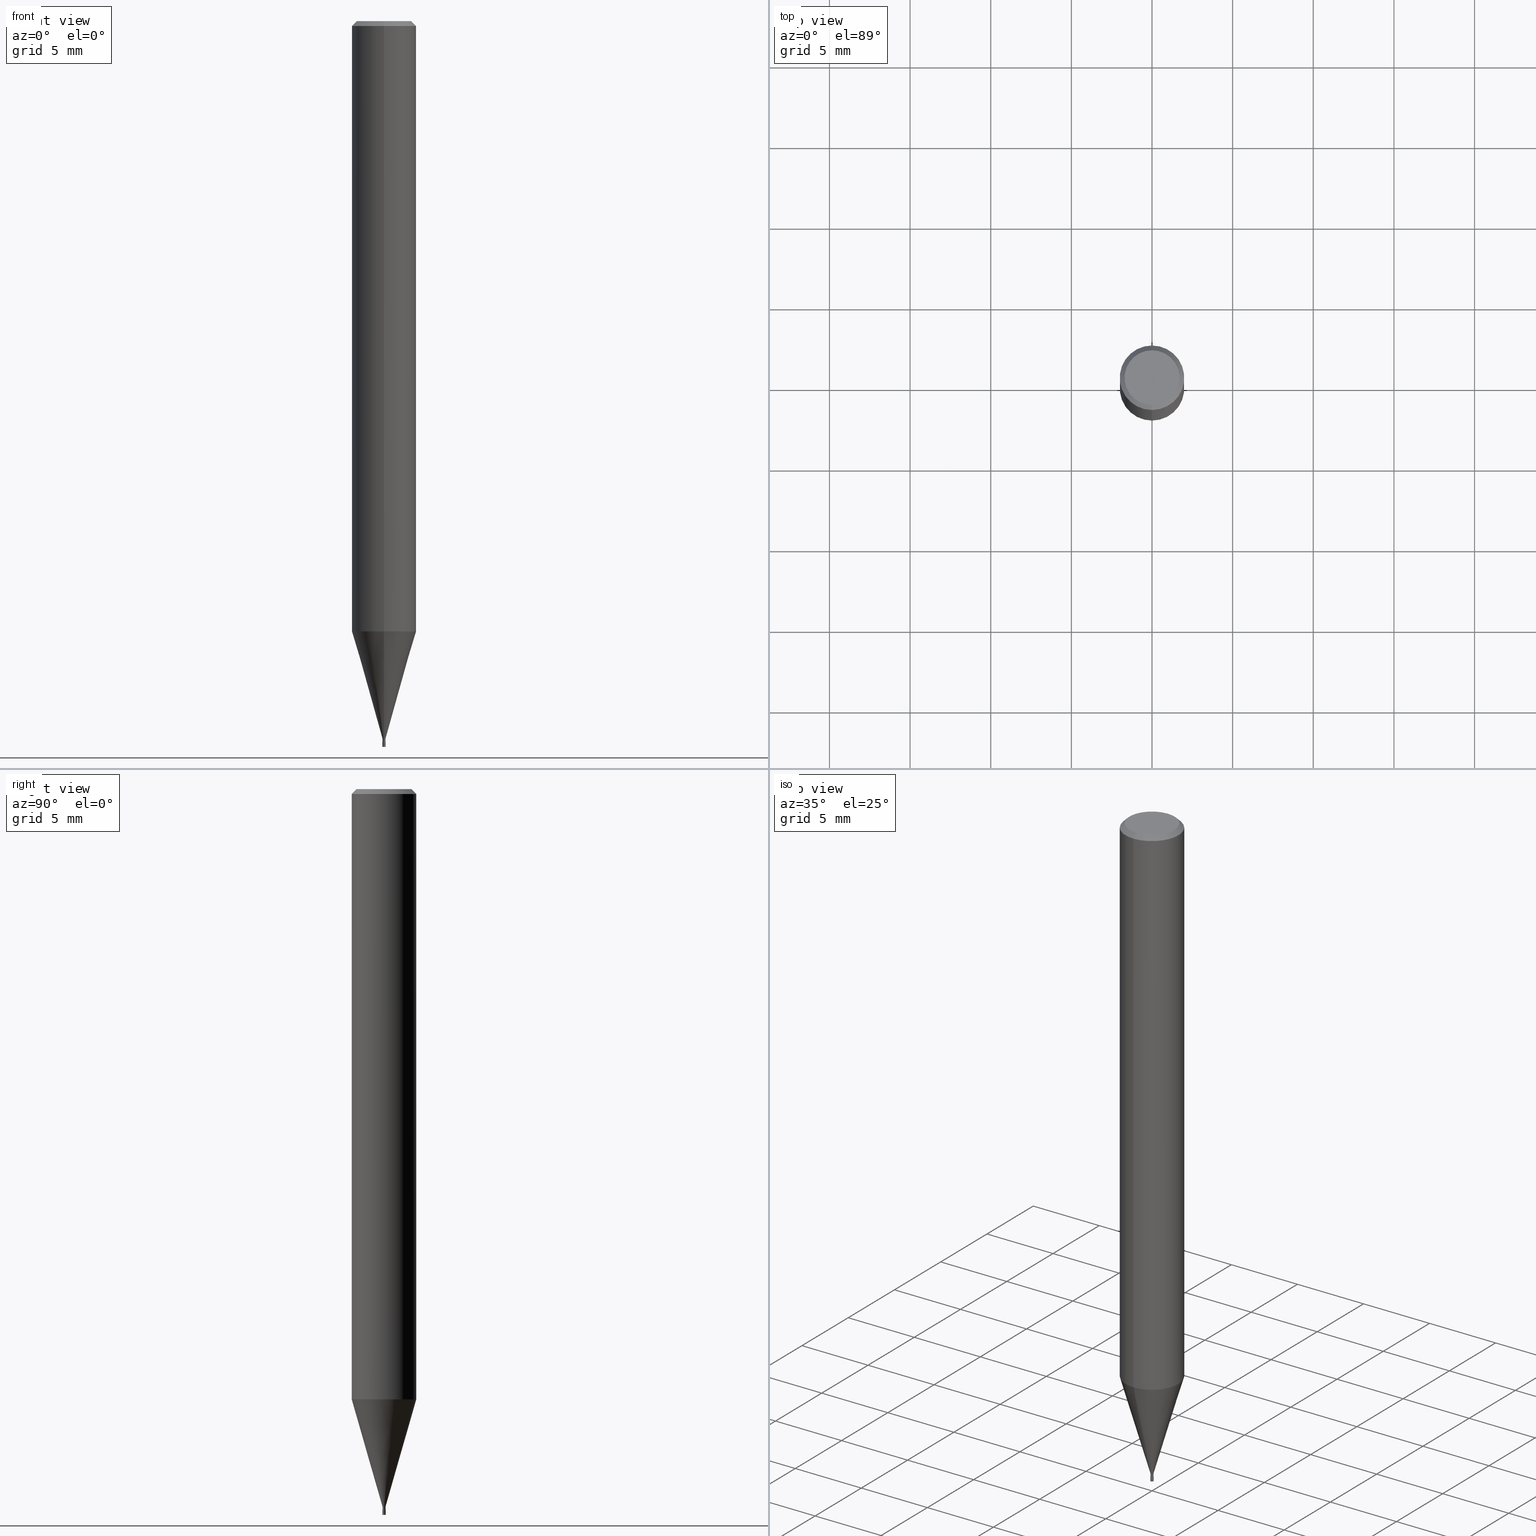
[diagram: canonical four-view strip — front | top / right | iso, engineering-drawing reading convention]
A machine part, canonical four-view strip (front | top / right | iso — engineering-drawing reading convention). The complete STEP part file that produces these views, byte-faithful:
ISO-10303-21;
HEADER;
FILE_DESCRIPTION(('no description'),'unknown implementation level');
FILE_NAME('HLS2002-005-Huellk.stp','  ',('CIMSOURCE GmbH'),('CADClick - KiM GmbH - www.kimweb.de'),'unknown preprocess','ACIS','unknown authorization');
FILE_SCHEMA(('automotive_design'));
ENDSEC;
DATA;
#1=MECHANICAL_DESIGN_GEOMETRIC_PRESENTATION_REPRESENTATION(' ',(#14,#15,#16,#17,#18,#19,#20,#21,#22,#23,#24,#25,#26,#27,#28,#29,#30,#31,#32,#33,#34,#35,#36,#37,#38,#39,#40,#41,#42,#43,#44,#45,#46,#47,#48,#49,#50,#51,#52,#53,#54,#55,#56,#57,#58,#59,#60,#61,#62,#63,#64,#65,#66,#67,#68,#69,#70,#71,#72),#10);
#2=PRODUCT_DEFINITION_CONTEXT('',#73,'design');
#3=APPLICATION_PROTOCOL_DEFINITION('INTERNATIONAL STANDARD','automotive_design',1994,#73);
#4=PRODUCT_CATEGORY_RELATIONSHIP('NONE','NONE',#74,#75);
#5=SHAPE_DEFINITION_REPRESENTATION(#76,#77);
#6=PRODUCT_DEFINITION_CONTEXT('',#78,'design');
#7=APPLICATION_PROTOCOL_DEFINITION('INTERNATIONAL STANDARD','automotive_design',1994,#78);
#8=PRODUCT_CATEGORY_RELATIONSHIP('NONE','NONE',#79,#80);
#9=SHAPE_DEFINITION_REPRESENTATION(#81,#82);
#10= (GEOMETRIC_REPRESENTATION_CONTEXT(3)GLOBAL_UNCERTAINTY_ASSIGNED_CONTEXT((#85))GLOBAL_UNIT_ASSIGNED_CONTEXT((#87,#88,#89))REPRESENTATION_CONTEXT('NONE','WORKSPACE'));
#14=STYLED_ITEM('',(#91),#92);
#15=STYLED_ITEM('',(#93),#94);
#16=STYLED_ITEM('',(#95),#96);
#17=STYLED_ITEM('',(#97),#98);
#18=STYLED_ITEM('',(#99),#100);
#19=STYLED_ITEM('',(#101),#102);
#20=STYLED_ITEM('',(#103),#104);
#21=STYLED_ITEM('',(#105),#106);
#22=STYLED_ITEM('',(#107),#108);
#23=STYLED_ITEM('',(#109),#110);
#24=STYLED_ITEM('',(#111),#112);
#25=STYLED_ITEM('',(#113),#114);
#26=STYLED_ITEM('',(#115),#116);
#27=STYLED_ITEM('',(#117),#118);
#28=STYLED_ITEM('',(#119),#120);
#29=STYLED_ITEM('',(#121),#122);
#30=STYLED_ITEM('',(#123),#124);
#31=STYLED_ITEM('',(#125),#126);
#32=STYLED_ITEM('',(#127),#128);
#33=STYLED_ITEM('',(#129),#130);
#34=STYLED_ITEM('',(#131),#132);
#35=STYLED_ITEM('',(#133),#134);
#36=STYLED_ITEM('',(#135),#136);
#37=STYLED_ITEM('',(#137),#138);
#38=STYLED_ITEM('',(#139),#140);
#39=STYLED_ITEM('',(#141),#142);
#40=STYLED_ITEM('',(#143),#144);
#41=STYLED_ITEM('',(#145),#146);
#42=STYLED_ITEM('',(#147),#148);
#43=STYLED_ITEM('',(#149),#150);
#44=STYLED_ITEM('',(#151),#152);
#45=STYLED_ITEM('',(#153),#154);
#46=STYLED_ITEM('',(#155),#156);
#47=STYLED_ITEM('',(#157),#158);
#48=STYLED_ITEM('',(#159),#160);
#49=STYLED_ITEM('',(#161),#162);
#50=STYLED_ITEM('',(#163),#164);
#51=STYLED_ITEM('',(#165),#166);
#52=STYLED_ITEM('',(#167),#168);
#53=STYLED_ITEM('',(#169),#170);
#54=STYLED_ITEM('',(#171),#172);
#55=STYLED_ITEM('',(#173),#174);
#56=STYLED_ITEM('',(#175),#176);
#57=STYLED_ITEM('',(#177),#178);
#58=STYLED_ITEM('',(#179),#180);
#59=STYLED_ITEM('',(#181),#182);
#60=STYLED_ITEM('',(#183),#184);
#61=STYLED_ITEM('',(#185),#186);
#62=STYLED_ITEM('',(#187),#188);
#63=STYLED_ITEM('',(#189),#190);
#64=STYLED_ITEM('',(#191),#192);
#65=STYLED_ITEM('',(#193),#194);
#66=STYLED_ITEM('',(#195),#196);
#67=STYLED_ITEM('',(#197),#198);
#68=STYLED_ITEM('',(#199),#200);
#69=STYLED_ITEM('',(#201),#202);
#70=STYLED_ITEM('',(#203),#204);
#71=STYLED_ITEM('',(#205),#206);
#72=STYLED_ITEM('',(#207),#208);
#73=APPLICATION_CONTEXT(' ');
#74=PRODUCT_CATEGORY('part','NONE');
#75=PRODUCT_RELATED_PRODUCT_CATEGORY('detail',' ',(#209));
#76=PRODUCT_DEFINITION_SHAPE('NONE','NONE',#210);
#77=ADVANCED_BREP_SHAPE_REPRESENTATION('1',(#196,#211),#10);
#78=APPLICATION_CONTEXT(' ');
#79=PRODUCT_CATEGORY('part','NONE');
#80=PRODUCT_RELATED_PRODUCT_CATEGORY('detail',' ',(#212));
#81=PRODUCT_DEFINITION_SHAPE('NONE','NONE',#213);
#82=ADVANCED_BREP_SHAPE_REPRESENTATION('2',(#126,#214),#10);
#85=UNCERTAINTY_MEASURE_WITH_UNIT(LENGTH_MEASURE(1.0E-006),#87,'','');
#87= (CONVERSION_BASED_UNIT('MILLIMETRE',#217)LENGTH_UNIT()NAMED_UNIT(#220));
#88= (NAMED_UNIT(#222)PLANE_ANGLE_UNIT()SI_UNIT($,.RADIAN.));
#89= (NAMED_UNIT(#222)SOLID_ANGLE_UNIT()SI_UNIT($,.STERADIAN.));
#91=PRESENTATION_STYLE_ASSIGNMENT((#228));
#92=EDGE_CURVE('',#200,#166,#229,.T.);
#93=PRESENTATION_STYLE_ASSIGNMENT((#230));
#94=EDGE_CURVE('',#174,#164,#231,.T.);
#95=PRESENTATION_STYLE_ASSIGNMENT((#232));
#96=EDGE_CURVE('',#166,#174,#233,.T.);
#97=PRESENTATION_STYLE_ASSIGNMENT((#234));
#98=EDGE_CURVE('',#192,#208,#235,.T.);
#99=PRESENTATION_STYLE_ASSIGNMENT((#236));
#100=EDGE_CURVE('',#160,#178,#237,.T.);
#101=PRESENTATION_STYLE_ASSIGNMENT((#238));
#102=EDGE_CURVE('',#202,#122,#239,.T.);
#103=PRESENTATION_STYLE_ASSIGNMENT((#240));
#104=ADVANCED_FACE('',(#241),#242,.T.);
#105=PRESENTATION_STYLE_ASSIGNMENT((#243));
#106=EDGE_CURVE('',#136,#140,#244,.T.);
#107=PRESENTATION_STYLE_ASSIGNMENT((#245));
#108=EDGE_CURVE('',#122,#180,#246,.T.);
#109=PRESENTATION_STYLE_ASSIGNMENT((#247));
#110=ADVANCED_FACE('',(#248),#249,.T.);
#111=PRESENTATION_STYLE_ASSIGNMENT((#250));
#112=ADVANCED_FACE('',(#251),#252,.T.);
#113=PRESENTATION_STYLE_ASSIGNMENT((#253));
#114=ADVANCED_FACE('',(#254),#255,.T.);
#115=PRESENTATION_STYLE_ASSIGNMENT((#256));
#116=VERTEX_POINT('',#257);
#117=PRESENTATION_STYLE_ASSIGNMENT((#258));
#118=ADVANCED_FACE('',(#259),#260,.T.);
#119=PRESENTATION_STYLE_ASSIGNMENT((#261));
#120=EDGE_CURVE('',#192,#140,#262,.T.);
#121=PRESENTATION_STYLE_ASSIGNMENT((#263));
#122=VERTEX_POINT('',#264);
#123=PRESENTATION_STYLE_ASSIGNMENT((#265));
#124=EDGE_CURVE('',#162,#200,#266,.T.);
#125=PRESENTATION_STYLE_ASSIGNMENT((#267));
#126=MANIFOLD_SOLID_BREP('2',#268);
#127=PRESENTATION_STYLE_ASSIGNMENT((#269));
#128=VERTEX_POINT('',#270);
#129=PRESENTATION_STYLE_ASSIGNMENT((#271));
#130=EDGE_CURVE('',#178,#160,#272,.T.);
#131=PRESENTATION_STYLE_ASSIGNMENT((#273));
#132=EDGE_CURVE('',#180,#116,#274,.T.);
#133=PRESENTATION_STYLE_ASSIGNMENT((#275));
#134=EDGE_CURVE('',#128,#164,#276,.T.);
#135=PRESENTATION_STYLE_ASSIGNMENT((#277));
#136=VERTEX_POINT('',#278);
#137=PRESENTATION_STYLE_ASSIGNMENT((#279));
#138=ADVANCED_FACE('',(#280),#281,.T.);
#139=PRESENTATION_STYLE_ASSIGNMENT((#282));
#140=VERTEX_POINT('',#283);
#141=PRESENTATION_STYLE_ASSIGNMENT((#284));
#142=EDGE_CURVE('',#162,#174,#285,.T.);
#143=PRESENTATION_STYLE_ASSIGNMENT((#286));
#144=ADVANCED_FACE('',(#287,#288),#289,.T.);
#145=PRESENTATION_STYLE_ASSIGNMENT((#290));
#146=ADVANCED_FACE('',(#291),#292,.T.);
#147=PRESENTATION_STYLE_ASSIGNMENT((#293));
#148=ADVANCED_FACE('',(#294),#295,.T.);
#149=PRESENTATION_STYLE_ASSIGNMENT((#296));
#150=EDGE_CURVE('',#128,#162,#297,.T.);
#151=PRESENTATION_STYLE_ASSIGNMENT((#298));
#152=ADVANCED_FACE('',(#299),#300,.T.);
#153=PRESENTATION_STYLE_ASSIGNMENT((#301));
#154=EDGE_CURVE('',#122,#202,#302,.T.);
#155=PRESENTATION_STYLE_ASSIGNMENT((#303));
#156=ADVANCED_FACE('',(#304),#305,.T.);
#157=PRESENTATION_STYLE_ASSIGNMENT((#306));
#158=EDGE_CURVE('',#116,#202,#307,.T.);
#159=PRESENTATION_STYLE_ASSIGNMENT((#308));
#160=VERTEX_POINT('',#309);
#161=PRESENTATION_STYLE_ASSIGNMENT((#310));
#162=VERTEX_POINT('',#311);
#163=PRESENTATION_STYLE_ASSIGNMENT((#312));
#164=VERTEX_POINT('',#313);
#165=PRESENTATION_STYLE_ASSIGNMENT((#314));
#166=VERTEX_POINT('',#315);
#167=PRESENTATION_STYLE_ASSIGNMENT((#316));
#168=EDGE_CURVE('',#166,#200,#317,.T.);
#169=PRESENTATION_STYLE_ASSIGNMENT((#318));
#170=ADVANCED_FACE('',(#319),#320,.T.);
#171=PRESENTATION_STYLE_ASSIGNMENT((#321));
#172=EDGE_CURVE('',#208,#136,#322,.T.);
#173=PRESENTATION_STYLE_ASSIGNMENT((#323));
#174=VERTEX_POINT('',#324);
#175=PRESENTATION_STYLE_ASSIGNMENT((#325));
#176=EDGE_CURVE('',#180,#160,#326,.T.);
#177=PRESENTATION_STYLE_ASSIGNMENT((#327));
#178=VERTEX_POINT('',#328);
#179=PRESENTATION_STYLE_ASSIGNMENT((#329));
#180=VERTEX_POINT('',#330);
#181=PRESENTATION_STYLE_ASSIGNMENT((#331));
#182=ADVANCED_FACE('',(#332),#333,.T.);
#183=PRESENTATION_STYLE_ASSIGNMENT((#334));
#184=EDGE_CURVE('',#178,#116,#335,.T.);
#185=PRESENTATION_STYLE_ASSIGNMENT((#336));
#186=EDGE_CURVE('',#174,#162,#337,.T.);
#187=PRESENTATION_STYLE_ASSIGNMENT((#338));
#188=ADVANCED_FACE('',(#339),#340,.T.);
#189=PRESENTATION_STYLE_ASSIGNMENT((#341));
#190=EDGE_CURVE('',#116,#180,#342,.T.);
#191=PRESENTATION_STYLE_ASSIGNMENT((#343));
#192=VERTEX_POINT('',#344);
#193=PRESENTATION_STYLE_ASSIGNMENT((#345));
#194=EDGE_CURVE('',#136,#208,#346,.T.);
#195=PRESENTATION_STYLE_ASSIGNMENT((#347));
#196=MANIFOLD_SOLID_BREP('1',#348);
#197=PRESENTATION_STYLE_ASSIGNMENT((#349));
#198=EDGE_CURVE('',#140,#192,#350,.T.);
#199=PRESENTATION_STYLE_ASSIGNMENT((#351));
#200=VERTEX_POINT('',#352);
#201=PRESENTATION_STYLE_ASSIGNMENT((#353));
#202=VERTEX_POINT('',#354);
#203=PRESENTATION_STYLE_ASSIGNMENT((#355));
#204=ADVANCED_FACE('',(#356),#357,.T.);
#205=PRESENTATION_STYLE_ASSIGNMENT((#358));
#206=EDGE_CURVE('',#164,#128,#359,.T.);
#207=PRESENTATION_STYLE_ASSIGNMENT((#360));
#208=VERTEX_POINT('',#361);
#209=PRODUCT('1','1','PART-1-DESC',(#362));
#210=PRODUCT_DEFINITION('NONE','NONE',#363,#2);
#211=AXIS2_PLACEMENT_3D('',#364,#365,#366);
#212=PRODUCT('2','2','PART-2-DESC',(#367));
#213=PRODUCT_DEFINITION('NONE','NONE',#368,#6);
#214=AXIS2_PLACEMENT_3D('',#369,#370,#371);
#217=LENGTH_MEASURE_WITH_UNIT(LENGTH_MEASURE(1.0),#372);
#220=DIMENSIONAL_EXPONENTS(1.0,0.0,0.0,0.0,0.0,0.0,0.0);
#222=DIMENSIONAL_EXPONENTS(0.0,0.0,0.0,0.0,0.0,0.0,0.0);
#228=CURVE_STYLE('',#373,POSITIVE_LENGTH_MEASURE(1.0E-006),#374);
#229=CIRCLE('',#375,2.0);
#230=CURVE_STYLE('',#376,POSITIVE_LENGTH_MEASURE(1.0E-006),#377);
#231=LINE('',#378,#379);
#232=CURVE_STYLE('',#380,POSITIVE_LENGTH_MEASURE(1.0E-006),#381);
#233=LINE('',#382,#383);
#234=CURVE_STYLE('',#384,POSITIVE_LENGTH_MEASURE(1.0E-006),#385);
#235=LINE('',#386,#387);
#236=CURVE_STYLE('',#388,POSITIVE_LENGTH_MEASURE(1.0E-006),#389);
#237=CIRCLE('',#390,1.99995);
#238=CURVE_STYLE('',#391,POSITIVE_LENGTH_MEASURE(1.0E-006),#392);
#239=CIRCLE('',#393,0.08995);
#240=SURFACE_STYLE_USAGE(.BOTH.,#394);
#241=FACE_OUTER_BOUND('',#395,.T.);
#242=CONICAL_SURFACE('',#396,0.09995,0.000333333320987665);
#243=CURVE_STYLE('',#397,POSITIVE_LENGTH_MEASURE(1.0E-006),#398);
#244=LINE('',#399,#400);
#245=CURVE_STYLE('',#401,POSITIVE_LENGTH_MEASURE(1.0E-006),#402);
#246=LINE('',#403,#404);
#247=SURFACE_STYLE_USAGE(.BOTH.,#405);
#248=FACE_OUTER_BOUND('',#406,.T.);
#249=CONICAL_SURFACE('',#407,1.04495,0.279251152364767);
#250=SURFACE_STYLE_USAGE(.BOTH.,#408);
#251=FACE_OUTER_BOUND('',#409,.T.);
#252=PLANE('',#410);
#253=SURFACE_STYLE_USAGE(.BOTH.,#411);
#254=FACE_OUTER_BOUND('',#412,.T.);
#255=CONICAL_SURFACE('',#413,1.85,0.785398163397453);
#256=POINT_STYLE(' ',#414,POSITIVE_LENGTH_MEASURE(1.0E-006),#415);
#257=CARTESIAN_POINT('',(0.0,0.08995,-44.5));
#258=SURFACE_STYLE_USAGE(.BOTH.,#416);
#259=FACE_OUTER_BOUND('',#417,.T.);
#260=PLANE('',#418);
#261=CURVE_STYLE('',#419,POSITIVE_LENGTH_MEASURE(1.0E-006),#420);
#262=CIRCLE('',#421,0.0999);
#263=POINT_STYLE(' ',#422,POSITIVE_LENGTH_MEASURE(1.0E-006),#423);
#264=CARTESIAN_POINT('',(1.10153341526323E-017,-0.08995,-44.7));
#265=CURVE_STYLE('',#424,POSITIVE_LENGTH_MEASURE(1.0E-006),#425);
#266=LINE('',#426,#427);
#267=SURFACE_STYLE_USAGE(.BOTH.,#428);
#268=CLOSED_SHELL('',(#148,#112,#104,#170));
#269=POINT_STYLE(' ',#429,POSITIVE_LENGTH_MEASURE(1.0E-006),#430);
#270=CARTESIAN_POINT('',(0.0,1.7,0.0));
#271=CURVE_STYLE('',#431,POSITIVE_LENGTH_MEASURE(1.0E-006),#432);
#272=CIRCLE('',#433,1.99995);
#273=CURVE_STYLE('',#434,POSITIVE_LENGTH_MEASURE(1.0E-006),#435);
#274=CIRCLE('',#436,0.08995);
#275=CURVE_STYLE('',#437,POSITIVE_LENGTH_MEASURE(1.0E-006),#438);
#276=CIRCLE('',#439,1.7);
#277=POINT_STYLE(' ',#440,POSITIVE_LENGTH_MEASURE(1.0E-006),#441);
#278=CARTESIAN_POINT('',(1.22460635382238E-017,-0.1,-45.0));
#279=SURFACE_STYLE_USAGE(.BOTH.,#442);
#280=FACE_OUTER_BOUND('',#443,.T.);
#281=CYLINDRICAL_SURFACE('',#444,2.0);
#282=POINT_STYLE(' ',#445,POSITIVE_LENGTH_MEASURE(1.0E-006),#446);
#283=CARTESIAN_POINT('',(1.22338174746855E-017,-0.0999,-44.7));
#284=CURVE_STYLE('',#447,POSITIVE_LENGTH_MEASURE(1.0E-006),#448);
#285=CIRCLE('',#449,2.0);
#286=SURFACE_STYLE_USAGE(.BOTH.,#450);
#287=FACE_OUTER_BOUND('',#451,.T.);
#288=FACE_BOUND('',#452,.T.);
#289=PLANE('',#453);
#290=SURFACE_STYLE_USAGE(.BOTH.,#454);
#291=FACE_OUTER_BOUND('',#455,.T.);
#292=CYLINDRICAL_SURFACE('',#456,0.08995);
#293=SURFACE_STYLE_USAGE(.BOTH.,#457);
#294=FACE_OUTER_BOUND('',#458,.T.);
#295=CONICAL_SURFACE('',#459,0.09995,0.000333333320987665);
#296=CURVE_STYLE('',#460,POSITIVE_LENGTH_MEASURE(1.0E-006),#461);
#297=LINE('',#462,#463);
#298=SURFACE_STYLE_USAGE(.BOTH.,#464);
#299=FACE_OUTER_BOUND('',#465,.T.);
#300=CYLINDRICAL_SURFACE('',#466,0.08995);
#301=CURVE_STYLE('',#467,POSITIVE_LENGTH_MEASURE(1.0E-006),#468);
#302=CIRCLE('',#469,0.08995);
#303=SURFACE_STYLE_USAGE(.BOTH.,#470);
#304=FACE_OUTER_BOUND('',#471,.T.);
#305=PLANE('',#472);
#306=CURVE_STYLE('',#473,POSITIVE_LENGTH_MEASURE(1.0E-006),#474);
#307=LINE('',#475,#476);
#308=POINT_STYLE(' ',#477,POSITIVE_LENGTH_MEASURE(1.0E-006),#478);
#309=CARTESIAN_POINT('',(2.44915147732706E-016,-1.99995,-37.839));
#310=POINT_STYLE(' ',#479,POSITIVE_LENGTH_MEASURE(1.0E-006),#480);
#311=CARTESIAN_POINT('',(0.0,2.0,-0.299999999999997));
#312=POINT_STYLE(' ',#481,POSITIVE_LENGTH_MEASURE(1.0E-006),#482);
#313=CARTESIAN_POINT('',(2.08183080149804E-016,-1.7,0.0));
#314=POINT_STYLE(' ',#483,POSITIVE_LENGTH_MEASURE(1.0E-006),#484);
#315=CARTESIAN_POINT('',(2.44921270764475E-016,-2.0,-37.839));
#316=CURVE_STYLE('',#485,POSITIVE_LENGTH_MEASURE(1.0E-006),#486);
#317=CIRCLE('',#487,2.0);
#318=SURFACE_STYLE_USAGE(.BOTH.,#488);
#319=FACE_OUTER_BOUND('',#489,.T.);
#320=PLANE('',#490);
#321=CURVE_STYLE('',#491,POSITIVE_LENGTH_MEASURE(1.0E-006),#492);
#322=CIRCLE('',#493,0.1);
#323=POINT_STYLE(' ',#494,POSITIVE_LENGTH_MEASURE(1.0E-006),#495);
#324=CARTESIAN_POINT('',(2.44921270764475E-016,-2.0,-0.299999999999997));
#325=CURVE_STYLE('',#496,POSITIVE_LENGTH_MEASURE(1.0E-006),#497);
#326=LINE('',#498,#499);
#327=POINT_STYLE(' ',#500,POSITIVE_LENGTH_MEASURE(1.0E-006),#501);
#328=CARTESIAN_POINT('',(0.0,1.99995,-37.839));
#329=POINT_STYLE(' ',#502,POSITIVE_LENGTH_MEASURE(1.0E-006),#503);
#330=CARTESIAN_POINT('',(1.10153341526323E-017,-0.08995,-44.5));
#331=SURFACE_STYLE_USAGE(.BOTH.,#504);
#332=FACE_OUTER_BOUND('',#505,.T.);
#333=CYLINDRICAL_SURFACE('',#506,2.0);
#334=CURVE_STYLE('',#507,POSITIVE_LENGTH_MEASURE(1.0E-006),#508);
#335=LINE('',#509,#510);
#336=CURVE_STYLE('',#511,POSITIVE_LENGTH_MEASURE(1.0E-006),#512);
#337=CIRCLE('',#513,2.0);
#338=SURFACE_STYLE_USAGE(.BOTH.,#514);
#339=FACE_OUTER_BOUND('',#515,.T.);
#340=CONICAL_SURFACE('',#516,1.85,0.785398163397453);
#341=CURVE_STYLE('',#517,POSITIVE_LENGTH_MEASURE(1.0E-006),#518);
#342=CIRCLE('',#519,0.08995);
#343=POINT_STYLE(' ',#520,POSITIVE_LENGTH_MEASURE(1.0E-006),#521);
#344=CARTESIAN_POINT('',(0.0,0.0999,-44.7));
#345=CURVE_STYLE('',#522,POSITIVE_LENGTH_MEASURE(1.0E-006),#523);
#346=CIRCLE('',#524,0.1);
#347=SURFACE_STYLE_USAGE(.BOTH.,#525);
#348=CLOSED_SHELL('',(#152,#204,#138,#188,#144,#156,#114,#182,#110,#146,#118));
#349=CURVE_STYLE('',#526,POSITIVE_LENGTH_MEASURE(1.0E-006),#527);
#350=CIRCLE('',#528,0.0999);
#351=POINT_STYLE(' ',#529,POSITIVE_LENGTH_MEASURE(1.0E-006),#530);
#352=CARTESIAN_POINT('',(0.0,2.0,-37.839));
#353=POINT_STYLE(' ',#531,POSITIVE_LENGTH_MEASURE(1.0E-006),#532);
#354=CARTESIAN_POINT('',(0.0,0.08995,-44.7));
#355=SURFACE_STYLE_USAGE(.BOTH.,#533);
#356=FACE_OUTER_BOUND('',#534,.T.);
#357=CONICAL_SURFACE('',#535,1.04495,0.279251152364767);
#358=CURVE_STYLE('',#536,POSITIVE_LENGTH_MEASURE(1.0E-006),#537);
#359=CIRCLE('',#538,1.7);
#360=POINT_STYLE(' ',#539,POSITIVE_LENGTH_MEASURE(1.0E-006),#540);
#361=CARTESIAN_POINT('',(0.0,0.1,-45.0));
#362=PRODUCT_CONTEXT('',#73,'mechanical');
#363=PRODUCT_DEFINITION_FORMATION_WITH_SPECIFIED_SOURCE(' ','NONE',#209,.NOT_KNOWN.);
#364=CARTESIAN_POINT('',(0.0,0.0,0.0));
#365=DIRECTION('',(0.0,0.0,1.0));
#366=DIRECTION('',(1.0,0.0,0.0));
#367=PRODUCT_CONTEXT('',#78,'mechanical');
#368=PRODUCT_DEFINITION_FORMATION_WITH_SPECIFIED_SOURCE(' ','NONE',#212,.NOT_KNOWN.);
#369=CARTESIAN_POINT('',(0.0,0.0,0.0));
#370=DIRECTION('',(0.0,0.0,1.0));
#371=DIRECTION('',(1.0,0.0,0.0));
#372= (NAMED_UNIT(#220)LENGTH_UNIT()SI_UNIT(.MILLI.,.METRE.));
#373=DRAUGHTING_PRE_DEFINED_CURVE_FONT('continuous');
#374=COLOUR_RGB('',0.498039215803146,0.498039215803146,0.498039215803146);
#375=AXIS2_PLACEMENT_3D('',#542,#543,#544);
#376=DRAUGHTING_PRE_DEFINED_CURVE_FONT('continuous');
#377=COLOUR_RGB('',0.498039215803146,0.498039215803146,0.498039215803146);
#378=CARTESIAN_POINT('',(2.2655217545714E-016,-1.85,-0.149999999999999));
#379=VECTOR('',#545,1.0);
#380=DRAUGHTING_PRE_DEFINED_CURVE_FONT('continuous');
#381=COLOUR_RGB('',0.498039215803146,0.498039215803146,0.498039215803146);
#382=CARTESIAN_POINT('',(2.44921270764475E-016,-2.0,-19.0695));
#383=VECTOR('',#546,1.0);
#384=DRAUGHTING_PRE_DEFINED_CURVE_FONT('continuous');
#385=COLOUR_RGB('',0.800000011920929,0.800000011920929,0.800000011920929);
#386=CARTESIAN_POINT('',(-1.22399405064547E-017,0.09995,-44.85));
#387=VECTOR('',#547,1.0);
#388=DRAUGHTING_PRE_DEFINED_CURVE_FONT('continuous');
#389=COLOUR_RGB('',0.498039215803146,0.498039215803146,0.498039215803146);
#390=AXIS2_PLACEMENT_3D('',#548,#549,#550);
#391=DRAUGHTING_PRE_DEFINED_CURVE_FONT('continuous');
#392=COLOUR_RGB('',0.498039215803146,0.498039215803146,0.498039215803146);
#393=AXIS2_PLACEMENT_3D('',#551,#552,#553);
#394=SURFACE_SIDE_STYLE('',(#554));
#395=EDGE_LOOP('',(#555,#556,#557,#558));
#396=AXIS2_PLACEMENT_3D('',#559,#560,#561);
#397=DRAUGHTING_PRE_DEFINED_CURVE_FONT('continuous');
#398=COLOUR_RGB('',0.800000011920929,0.800000011920929,0.800000011920929);
#399=CARTESIAN_POINT('',(1.22399405064547E-017,-0.09995,-44.85));
#400=VECTOR('',#562,1.0);
#401=DRAUGHTING_PRE_DEFINED_CURVE_FONT('continuous');
#402=COLOUR_RGB('',0.498039215803146,0.498039215803146,0.498039215803146);
#403=CARTESIAN_POINT('',(1.10153341526323E-017,-0.08995,-44.6));
#404=VECTOR('',#563,1.0);
#405=SURFACE_SIDE_STYLE('',(#564));
#406=EDGE_LOOP('',(#565,#566,#567,#568));
#407=AXIS2_PLACEMENT_3D('',#569,#570,#571);
#408=SURFACE_SIDE_STYLE('',(#572));
#409=EDGE_LOOP('',(#573,#574));
#410=AXIS2_PLACEMENT_3D('',#575,#576,#577);
#411=SURFACE_SIDE_STYLE('',(#578));
#412=EDGE_LOOP('',(#579,#580,#581,#582));
#413=AXIS2_PLACEMENT_3D('',#583,#584,#585);
#414=PRE_DEFINED_MARKER('');
#415=COLOUR_RGB('',0.498039215803146,0.498039215803146,0.498039215803146);
#416=SURFACE_SIDE_STYLE('',(#586));
#417=EDGE_LOOP('',(#587,#588));
#418=AXIS2_PLACEMENT_3D('',#589,#590,#591);
#419=DRAUGHTING_PRE_DEFINED_CURVE_FONT('continuous');
#420=COLOUR_RGB('',0.800000011920929,0.800000011920929,0.800000011920929);
#421=AXIS2_PLACEMENT_3D('',#592,#593,#594);
#422=PRE_DEFINED_MARKER('');
#423=COLOUR_RGB('',0.498039215803146,0.498039215803146,0.498039215803146);
#424=DRAUGHTING_PRE_DEFINED_CURVE_FONT('continuous');
#425=COLOUR_RGB('',0.498039215803146,0.498039215803146,0.498039215803146);
#426=CARTESIAN_POINT('',(-2.44921270764475E-016,2.0,-19.0695));
#427=VECTOR('',#595,1.0);
#428=SURFACE_SIDE_STYLE('',(#596));
#429=PRE_DEFINED_MARKER('');
#430=COLOUR_RGB('',0.498039215803146,0.498039215803146,0.498039215803146);
#431=DRAUGHTING_PRE_DEFINED_CURVE_FONT('continuous');
#432=COLOUR_RGB('',0.498039215803146,0.498039215803146,0.498039215803146);
#433=AXIS2_PLACEMENT_3D('',#597,#598,#599);
#434=DRAUGHTING_PRE_DEFINED_CURVE_FONT('continuous');
#435=COLOUR_RGB('',0.498039215803146,0.498039215803146,0.498039215803146);
#436=AXIS2_PLACEMENT_3D('',#600,#601,#602);
#437=DRAUGHTING_PRE_DEFINED_CURVE_FONT('continuous');
#438=COLOUR_RGB('',0.498039215803146,0.498039215803146,0.498039215803146);
#439=AXIS2_PLACEMENT_3D('',#603,#604,#605);
#440=PRE_DEFINED_MARKER('');
#441=COLOUR_RGB('',0.800000011920929,0.800000011920929,0.800000011920929);
#442=SURFACE_SIDE_STYLE('',(#606));
#443=EDGE_LOOP('',(#607,#608,#609,#610));
#444=AXIS2_PLACEMENT_3D('',#611,#612,#613);
#445=PRE_DEFINED_MARKER('');
#446=COLOUR_RGB('',0.800000011920929,0.800000011920929,0.800000011920929);
#447=DRAUGHTING_PRE_DEFINED_CURVE_FONT('continuous');
#448=COLOUR_RGB('',0.498039215803146,0.498039215803146,0.498039215803146);
#449=AXIS2_PLACEMENT_3D('',#614,#615,#616);
#450=SURFACE_SIDE_STYLE('',(#617));
#451=EDGE_LOOP('',(#618,#619));
#452=EDGE_LOOP('',(#620,#621));
#453=AXIS2_PLACEMENT_3D('',#622,#623,#624);
#454=SURFACE_SIDE_STYLE('',(#625));
#455=EDGE_LOOP('',(#626,#627,#628,#629));
#456=AXIS2_PLACEMENT_3D('',#630,#631,#632);
#457=SURFACE_SIDE_STYLE('',(#633));
#458=EDGE_LOOP('',(#634,#635,#636,#637));
#459=AXIS2_PLACEMENT_3D('',#638,#639,#640);
#460=DRAUGHTING_PRE_DEFINED_CURVE_FONT('continuous');
#461=COLOUR_RGB('',0.498039215803146,0.498039215803146,0.498039215803146);
#462=CARTESIAN_POINT('',(-2.2655217545714E-016,1.85,-0.149999999999999));
#463=VECTOR('',#641,1.0);
#464=SURFACE_SIDE_STYLE('',(#642));
#465=EDGE_LOOP('',(#643,#644,#645,#646));
#466=AXIS2_PLACEMENT_3D('',#647,#648,#649);
#467=DRAUGHTING_PRE_DEFINED_CURVE_FONT('continuous');
#468=COLOUR_RGB('',0.498039215803146,0.498039215803146,0.498039215803146);
#469=AXIS2_PLACEMENT_3D('',#650,#651,#652);
#470=SURFACE_SIDE_STYLE('',(#653));
#471=EDGE_LOOP('',(#654,#655));
#472=AXIS2_PLACEMENT_3D('',#656,#657,#658);
#473=DRAUGHTING_PRE_DEFINED_CURVE_FONT('continuous');
#474=COLOUR_RGB('',0.498039215803146,0.498039215803146,0.498039215803146);
#475=CARTESIAN_POINT('',(-1.10153341526323E-017,0.08995,-44.6));
#476=VECTOR('',#659,1.0);
#477=PRE_DEFINED_MARKER('');
#478=COLOUR_RGB('',0.498039215803146,0.498039215803146,0.498039215803146);
#479=PRE_DEFINED_MARKER('');
#480=COLOUR_RGB('',0.498039215803146,0.498039215803146,0.498039215803146);
#481=PRE_DEFINED_MARKER('');
#482=COLOUR_RGB('',0.498039215803146,0.498039215803146,0.498039215803146);
#483=PRE_DEFINED_MARKER('');
#484=COLOUR_RGB('',0.498039215803146,0.498039215803146,0.498039215803146);
#485=DRAUGHTING_PRE_DEFINED_CURVE_FONT('continuous');
#486=COLOUR_RGB('',0.498039215803146,0.498039215803146,0.498039215803146);
#487=AXIS2_PLACEMENT_3D('',#660,#661,#662);
#488=SURFACE_SIDE_STYLE('',(#663));
#489=EDGE_LOOP('',(#664,#665));
#490=AXIS2_PLACEMENT_3D('',#666,#667,#668);
#491=DRAUGHTING_PRE_DEFINED_CURVE_FONT('continuous');
#492=COLOUR_RGB('',0.800000011920929,0.800000011920929,0.800000011920929);
#493=AXIS2_PLACEMENT_3D('',#669,#670,#671);
#494=PRE_DEFINED_MARKER('');
#495=COLOUR_RGB('',0.498039215803146,0.498039215803146,0.498039215803146);
#496=DRAUGHTING_PRE_DEFINED_CURVE_FONT('continuous');
#497=COLOUR_RGB('',0.498039215803146,0.498039215803146,0.498039215803146);
#498=CARTESIAN_POINT('',(1.27965240942669E-016,-1.04495,-41.1695));
#499=VECTOR('',#672,1.0);
#500=PRE_DEFINED_MARKER('');
#501=COLOUR_RGB('',0.498039215803146,0.498039215803146,0.498039215803146);
#502=PRE_DEFINED_MARKER('');
#503=COLOUR_RGB('',0.498039215803146,0.498039215803146,0.498039215803146);
#504=SURFACE_SIDE_STYLE('',(#673));
#505=EDGE_LOOP('',(#674,#675,#676,#677));
#506=AXIS2_PLACEMENT_3D('',#678,#679,#680);
#507=DRAUGHTING_PRE_DEFINED_CURVE_FONT('continuous');
#508=COLOUR_RGB('',0.498039215803146,0.498039215803146,0.498039215803146);
#509=CARTESIAN_POINT('',(-1.27965240942669E-016,1.04495,-41.1695));
#510=VECTOR('',#681,1.0);
#511=DRAUGHTING_PRE_DEFINED_CURVE_FONT('continuous');
#512=COLOUR_RGB('',0.498039215803146,0.498039215803146,0.498039215803146);
#513=AXIS2_PLACEMENT_3D('',#682,#683,#684);
#514=SURFACE_SIDE_STYLE('',(#685));
#515=EDGE_LOOP('',(#686,#687,#688,#689));
#516=AXIS2_PLACEMENT_3D('',#690,#691,#692);
#517=DRAUGHTING_PRE_DEFINED_CURVE_FONT('continuous');
#518=COLOUR_RGB('',0.498039215803146,0.498039215803146,0.498039215803146);
#519=AXIS2_PLACEMENT_3D('',#693,#694,#695);
#520=PRE_DEFINED_MARKER('');
#521=COLOUR_RGB('',0.800000011920929,0.800000011920929,0.800000011920929);
#522=DRAUGHTING_PRE_DEFINED_CURVE_FONT('continuous');
#523=COLOUR_RGB('',0.800000011920929,0.800000011920929,0.800000011920929);
#524=AXIS2_PLACEMENT_3D('',#696,#697,#698);
#525=SURFACE_SIDE_STYLE('',(#699));
#526=DRAUGHTING_PRE_DEFINED_CURVE_FONT('continuous');
#527=COLOUR_RGB('',0.800000011920929,0.800000011920929,0.800000011920929);
#528=AXIS2_PLACEMENT_3D('',#700,#701,#702);
#529=PRE_DEFINED_MARKER('');
#530=COLOUR_RGB('',0.498039215803146,0.498039215803146,0.498039215803146);
#531=PRE_DEFINED_MARKER('');
#532=COLOUR_RGB('',0.498039215803146,0.498039215803146,0.498039215803146);
#533=SURFACE_SIDE_STYLE('',(#703));
#534=EDGE_LOOP('',(#704,#705,#706,#707));
#535=AXIS2_PLACEMENT_3D('',#708,#709,#710);
#536=DRAUGHTING_PRE_DEFINED_CURVE_FONT('continuous');
#537=COLOUR_RGB('',0.498039215803146,0.498039215803146,0.498039215803146);
#538=AXIS2_PLACEMENT_3D('',#711,#712,#713);
#539=PRE_DEFINED_MARKER('');
#540=COLOUR_RGB('',0.800000011920929,0.800000011920929,0.800000011920929);
#542=CARTESIAN_POINT('',(0.0,0.0,-37.839));
#543=DIRECTION('',(0.0,0.0,-1.0));
#544=DIRECTION('',(0.0,1.0,0.0));
#545=DIRECTION('',(-8.6592745707194E-017,0.707106781186551,0.707106781186544));
#546=DIRECTION('',(-0.0,-0.0,1.0));
#547=DIRECTION('',(-4.08202095262911E-020,0.000333333314814826,-0.999999944444449));
#548=CARTESIAN_POINT('',(0.0,0.0,-37.839));
#549=DIRECTION('',(0.0,0.0,-1.0));
#550=DIRECTION('',(0.0,1.0,0.0));
#551=CARTESIAN_POINT('',(0.0,0.0,-44.7));
#552=DIRECTION('',(0.0,0.0,-1.0));
#553=DIRECTION('',(0.0,1.0,0.0));
#554=SURFACE_STYLE_FILL_AREA(#714);
#555=ORIENTED_EDGE('',*,*,#98,.T.);
#556=ORIENTED_EDGE('',*,*,#194,.F.);
#557=ORIENTED_EDGE('',*,*,#106,.T.);
#558=ORIENTED_EDGE('',*,*,#198,.T.);
#559=CARTESIAN_POINT('',(0.0,0.0,-44.85));
#560=DIRECTION('',(0.0,-0.0,-1.0));
#561=DIRECTION('',(0.0,1.0,0.0));
#562=DIRECTION('',(-4.08202095262911E-020,0.000333333314814826,0.999999944444449));
#563=DIRECTION('',(-0.0,-0.0,1.0));
#564=SURFACE_STYLE_FILL_AREA(#715);
#565=ORIENTED_EDGE('',*,*,#184,.T.);
#566=ORIENTED_EDGE('',*,*,#132,.F.);
#567=ORIENTED_EDGE('',*,*,#176,.T.);
#568=ORIENTED_EDGE('',*,*,#100,.T.);
#569=CARTESIAN_POINT('',(0.0,0.0,-41.1695));
#570=DIRECTION('',(-0.0,-0.0,1.0));
#571=DIRECTION('',(0.0,1.0,0.0));
#572=SURFACE_STYLE_FILL_AREA(#716);
#573=ORIENTED_EDGE('',*,*,#120,.F.);
#574=ORIENTED_EDGE('',*,*,#198,.F.);
#575=CARTESIAN_POINT('',(0.0,0.04995,-44.7));
#576=DIRECTION('',(-0.0,0.0,1.0));
#577=DIRECTION('',(0.0,-1.0,0.0));
#578=SURFACE_STYLE_FILL_AREA(#717);
#579=ORIENTED_EDGE('',*,*,#150,.T.);
#580=ORIENTED_EDGE('',*,*,#186,.F.);
#581=ORIENTED_EDGE('',*,*,#94,.T.);
#582=ORIENTED_EDGE('',*,*,#206,.T.);
#583=CARTESIAN_POINT('',(0.0,0.0,-0.149999999999999));
#584=DIRECTION('',(0.0,-0.0,-1.0));
#585=DIRECTION('',(0.0,1.0,0.0));
#586=SURFACE_STYLE_FILL_AREA(#718);
#587=ORIENTED_EDGE('',*,*,#102,.T.);
#588=ORIENTED_EDGE('',*,*,#154,.T.);
#589=CARTESIAN_POINT('',(0.0,0.044975,-44.7));
#590=DIRECTION('',(0.0,0.0,-1.0));
#591=DIRECTION('',(0.0,1.0,0.0));
#592=CARTESIAN_POINT('',(0.0,0.0,-44.7));
#593=DIRECTION('',(0.0,0.0,-1.0));
#594=DIRECTION('',(0.0,1.0,0.0));
#595=DIRECTION('',(0.0,0.0,-1.0));
#596=SURFACE_STYLE_FILL_AREA(#719);
#597=CARTESIAN_POINT('',(0.0,0.0,-37.839));
#598=DIRECTION('',(0.0,0.0,-1.0));
#599=DIRECTION('',(0.0,1.0,0.0));
#600=CARTESIAN_POINT('',(0.0,0.0,-44.5));
#601=DIRECTION('',(0.0,0.0,-1.0));
#602=DIRECTION('',(0.0,1.0,0.0));
#603=CARTESIAN_POINT('',(0.0,0.0,0.0));
#604=DIRECTION('',(0.0,0.0,-1.0));
#605=DIRECTION('',(0.0,1.0,0.0));
#606=SURFACE_STYLE_FILL_AREA(#720);
#607=ORIENTED_EDGE('',*,*,#124,.F.);
#608=ORIENTED_EDGE('',*,*,#142,.T.);
#609=ORIENTED_EDGE('',*,*,#96,.F.);
#610=ORIENTED_EDGE('',*,*,#92,.F.);
#611=CARTESIAN_POINT('',(0.0,0.0,-19.0695));
#612=DIRECTION('',(-0.0,-0.0,1.0));
#613=DIRECTION('',(0.0,1.0,0.0));
#614=CARTESIAN_POINT('',(0.0,0.0,-0.299999999999997));
#615=DIRECTION('',(0.0,0.0,-1.0));
#616=DIRECTION('',(0.0,1.0,0.0));
#617=SURFACE_STYLE_FILL_AREA(#721);
#618=ORIENTED_EDGE('',*,*,#92,.T.);
#619=ORIENTED_EDGE('',*,*,#168,.T.);
#620=ORIENTED_EDGE('',*,*,#130,.F.);
#621=ORIENTED_EDGE('',*,*,#100,.F.);
#622=CARTESIAN_POINT('',(0.0,1.0,-37.839));
#623=DIRECTION('',(0.0,0.0,-1.0));
#624=DIRECTION('',(0.0,1.0,0.0));
#625=SURFACE_STYLE_FILL_AREA(#722);
#626=ORIENTED_EDGE('',*,*,#158,.T.);
#627=ORIENTED_EDGE('',*,*,#154,.F.);
#628=ORIENTED_EDGE('',*,*,#108,.T.);
#629=ORIENTED_EDGE('',*,*,#132,.T.);
#630=CARTESIAN_POINT('',(0.0,0.0,-44.6));
#631=DIRECTION('',(-0.0,-0.0,1.0));
#632=DIRECTION('',(0.0,1.0,0.0));
#633=SURFACE_STYLE_FILL_AREA(#723);
#634=ORIENTED_EDGE('',*,*,#98,.F.);
#635=ORIENTED_EDGE('',*,*,#120,.T.);
#636=ORIENTED_EDGE('',*,*,#106,.F.);
#637=ORIENTED_EDGE('',*,*,#172,.F.);
#638=CARTESIAN_POINT('',(0.0,0.0,-44.85));
#639=DIRECTION('',(0.0,-0.0,-1.0));
#640=DIRECTION('',(0.0,1.0,0.0));
#641=DIRECTION('',(-8.6592745707194E-017,0.707106781186551,-0.707106781186544));
#642=SURFACE_STYLE_FILL_AREA(#724);
#643=ORIENTED_EDGE('',*,*,#158,.F.);
#644=ORIENTED_EDGE('',*,*,#190,.T.);
#645=ORIENTED_EDGE('',*,*,#108,.F.);
#646=ORIENTED_EDGE('',*,*,#102,.F.);
#647=CARTESIAN_POINT('',(0.0,0.0,-44.6));
#648=DIRECTION('',(-0.0,-0.0,1.0));
#649=DIRECTION('',(0.0,1.0,0.0));
#650=CARTESIAN_POINT('',(0.0,0.0,-44.7));
#651=DIRECTION('',(0.0,0.0,-1.0));
#652=DIRECTION('',(0.0,1.0,0.0));
#653=SURFACE_STYLE_FILL_AREA(#725);
#654=ORIENTED_EDGE('',*,*,#134,.F.);
#655=ORIENTED_EDGE('',*,*,#206,.F.);
#656=CARTESIAN_POINT('',(0.0,0.85,0.0));
#657=DIRECTION('',(-0.0,0.0,1.0));
#658=DIRECTION('',(0.0,-1.0,0.0));
#659=DIRECTION('',(0.0,0.0,-1.0));
#660=CARTESIAN_POINT('',(0.0,0.0,-37.839));
#661=DIRECTION('',(0.0,0.0,-1.0));
#662=DIRECTION('',(0.0,1.0,0.0));
#663=SURFACE_STYLE_FILL_AREA(#726);
#664=ORIENTED_EDGE('',*,*,#172,.T.);
#665=ORIENTED_EDGE('',*,*,#194,.T.);
#666=CARTESIAN_POINT('',(0.0,0.0475,-45.0));
#667=DIRECTION('',(0.0,0.0,-1.0));
#668=DIRECTION('',(0.0,1.0,0.0));
#669=CARTESIAN_POINT('',(0.0,0.0,-45.0));
#670=DIRECTION('',(0.0,0.0,-1.0));
#671=DIRECTION('',(0.0,1.0,0.0));
#672=DIRECTION('',(3.37545458626217E-017,-0.275635887052711,0.961262117098487));
#673=SURFACE_STYLE_FILL_AREA(#727);
#674=ORIENTED_EDGE('',*,*,#124,.T.);
#675=ORIENTED_EDGE('',*,*,#168,.F.);
#676=ORIENTED_EDGE('',*,*,#96,.T.);
#677=ORIENTED_EDGE('',*,*,#186,.T.);
#678=CARTESIAN_POINT('',(0.0,0.0,-19.0695));
#679=DIRECTION('',(-0.0,-0.0,1.0));
#680=DIRECTION('',(0.0,1.0,0.0));
#681=DIRECTION('',(3.37545458626217E-017,-0.275635887052711,-0.961262117098487));
#682=CARTESIAN_POINT('',(0.0,0.0,-0.299999999999997));
#683=DIRECTION('',(0.0,0.0,-1.0));
#684=DIRECTION('',(0.0,1.0,0.0));
#685=SURFACE_STYLE_FILL_AREA(#728);
#686=ORIENTED_EDGE('',*,*,#150,.F.);
#687=ORIENTED_EDGE('',*,*,#134,.T.);
#688=ORIENTED_EDGE('',*,*,#94,.F.);
#689=ORIENTED_EDGE('',*,*,#142,.F.);
#690=CARTESIAN_POINT('',(0.0,0.0,-0.149999999999999));
#691=DIRECTION('',(0.0,-0.0,-1.0));
#692=DIRECTION('',(0.0,1.0,0.0));
#693=CARTESIAN_POINT('',(0.0,0.0,-44.5));
#694=DIRECTION('',(0.0,0.0,-1.0));
#695=DIRECTION('',(0.0,1.0,0.0));
#696=CARTESIAN_POINT('',(0.0,0.0,-45.0));
#697=DIRECTION('',(0.0,0.0,-1.0));
#698=DIRECTION('',(0.0,1.0,0.0));
#699=SURFACE_STYLE_FILL_AREA(#729);
#700=CARTESIAN_POINT('',(0.0,0.0,-44.7));
#701=DIRECTION('',(0.0,0.0,-1.0));
#702=DIRECTION('',(0.0,1.0,0.0));
#703=SURFACE_STYLE_FILL_AREA(#730);
#704=ORIENTED_EDGE('',*,*,#184,.F.);
#705=ORIENTED_EDGE('',*,*,#130,.T.);
#706=ORIENTED_EDGE('',*,*,#176,.F.);
#707=ORIENTED_EDGE('',*,*,#190,.F.);
#708=CARTESIAN_POINT('',(0.0,0.0,-41.1695));
#709=DIRECTION('',(-0.0,-0.0,1.0));
#710=DIRECTION('',(0.0,1.0,0.0));
#711=CARTESIAN_POINT('',(0.0,0.0,0.0));
#712=DIRECTION('',(0.0,0.0,-1.0));
#713=DIRECTION('',(0.0,1.0,0.0));
#714=FILL_AREA_STYLE('',(#731));
#715=FILL_AREA_STYLE('',(#732));
#716=FILL_AREA_STYLE('',(#733));
#717=FILL_AREA_STYLE('',(#734));
#718=FILL_AREA_STYLE('',(#735));
#719=FILL_AREA_STYLE('',(#736));
#720=FILL_AREA_STYLE('',(#737));
#721=FILL_AREA_STYLE('',(#738));
#722=FILL_AREA_STYLE('',(#739));
#723=FILL_AREA_STYLE('',(#740));
#724=FILL_AREA_STYLE('',(#741));
#725=FILL_AREA_STYLE('',(#742));
#726=FILL_AREA_STYLE('',(#743));
#727=FILL_AREA_STYLE('',(#744));
#728=FILL_AREA_STYLE('',(#745));
#729=FILL_AREA_STYLE('',(#746));
#730=FILL_AREA_STYLE('',(#747));
#731=FILL_AREA_STYLE_COLOUR('',#748);
#732=FILL_AREA_STYLE_COLOUR('',#749);
#733=FILL_AREA_STYLE_COLOUR('',#750);
#734=FILL_AREA_STYLE_COLOUR('',#751);
#735=FILL_AREA_STYLE_COLOUR('',#752);
#736=FILL_AREA_STYLE_COLOUR('',#753);
#737=FILL_AREA_STYLE_COLOUR('',#754);
#738=FILL_AREA_STYLE_COLOUR('',#755);
#739=FILL_AREA_STYLE_COLOUR('',#756);
#740=FILL_AREA_STYLE_COLOUR('',#757);
#741=FILL_AREA_STYLE_COLOUR('',#758);
#742=FILL_AREA_STYLE_COLOUR('',#759);
#743=FILL_AREA_STYLE_COLOUR('',#760);
#744=FILL_AREA_STYLE_COLOUR('',#761);
#745=FILL_AREA_STYLE_COLOUR('',#762);
#746=FILL_AREA_STYLE_COLOUR('',#763);
#747=FILL_AREA_STYLE_COLOUR('',#764);
#748=COLOUR_RGB('',0.800000011920929,0.800000011920929,0.800000011920929);
#749=COLOUR_RGB('',0.498039215803146,0.498039215803146,0.498039215803146);
#750=COLOUR_RGB('',0.800000011920929,0.800000011920929,0.800000011920929);
#751=COLOUR_RGB('',0.498039215803146,0.498039215803146,0.498039215803146);
#752=COLOUR_RGB('',0.498039215803146,0.498039215803146,0.498039215803146);
#753=COLOUR_RGB('',0.800000011920929,0.800000011920929,0.800000011920929);
#754=COLOUR_RGB('',0.498039215803146,0.498039215803146,0.498039215803146);
#755=COLOUR_RGB('',0.498039215803146,0.498039215803146,0.498039215803146);
#756=COLOUR_RGB('',0.498039215803146,0.498039215803146,0.498039215803146);
#757=COLOUR_RGB('',0.800000011920929,0.800000011920929,0.800000011920929);
#758=COLOUR_RGB('',0.498039215803146,0.498039215803146,0.498039215803146);
#759=COLOUR_RGB('',0.498039215803146,0.498039215803146,0.498039215803146);
#760=COLOUR_RGB('',0.800000011920929,0.800000011920929,0.800000011920929);
#761=COLOUR_RGB('',0.498039215803146,0.498039215803146,0.498039215803146);
#762=COLOUR_RGB('',0.498039215803146,0.498039215803146,0.498039215803146);
#763=COLOUR_RGB('',0.498039215803146,0.498039215803146,0.498039215803146);
#764=COLOUR_RGB('',0.498039215803146,0.498039215803146,0.498039215803146);
#765=AXIS2_PLACEMENT_3D('PCS',#766,#767,#768);
#766=CARTESIAN_POINT('',(0.0,0.0,0.0));
#767=DIRECTION('',(0.0,0.0,1.0));
#768=DIRECTION('',(1.0,0.0,0.0));
#769=AXIS2_PLACEMENT_3D('CIP',#770,#771,#772);
#770=CARTESIAN_POINT('',(0.0,0.0,-45.0));
#771=DIRECTION('',(0.0,0.0,1.0));
#772=DIRECTION('',(1.0,0.0,0.0));
#773=AXIS2_PLACEMENT_3D('CRP',#774,#775,#776);
#774=CARTESIAN_POINT('',(-0.1,0.0,-45.0));
#775=DIRECTION('',(0.0,0.0,1.0));
#776=DIRECTION('',(1.0,0.0,0.0));
#777=AXIS2_PLACEMENT_3D('MCS',#778,#779,#780);
#778=CARTESIAN_POINT('',(0.0,0.0,-37.839));
#779=DIRECTION('',(0.0,0.0,1.0));
#780=DIRECTION('',(1.0,0.0,0.0));
#781=CONSTRUCTIVE_GEOMETRY_REPRESENTATION_RELATIONSHIP('coordinate systems',$,#77,#782);
#782=CONSTRUCTIVE_GEOMETRY_REPRESENTATION('coordinate systems',(#765,#769,#773,#777),#10);
ENDSEC;
END-ISO-10303-21;
